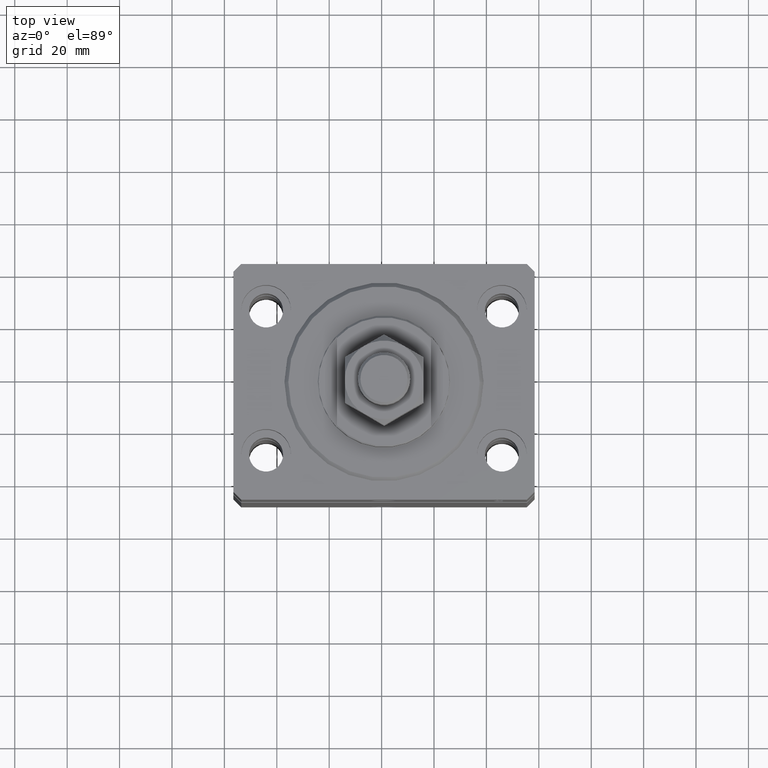
[diagram: clean part render]
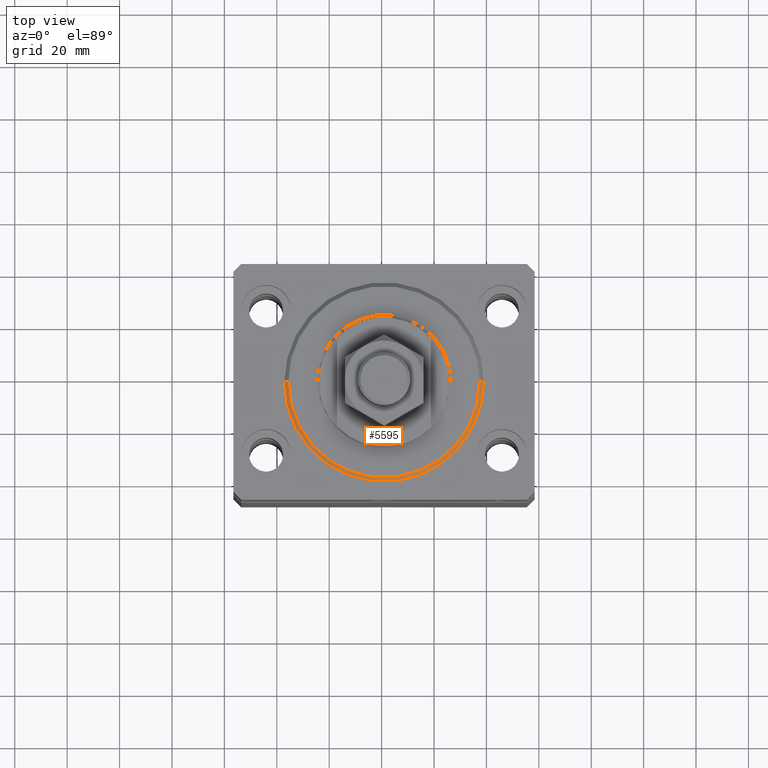
[diagram: same view with one face highlighted and labeled with its STEP entity id]
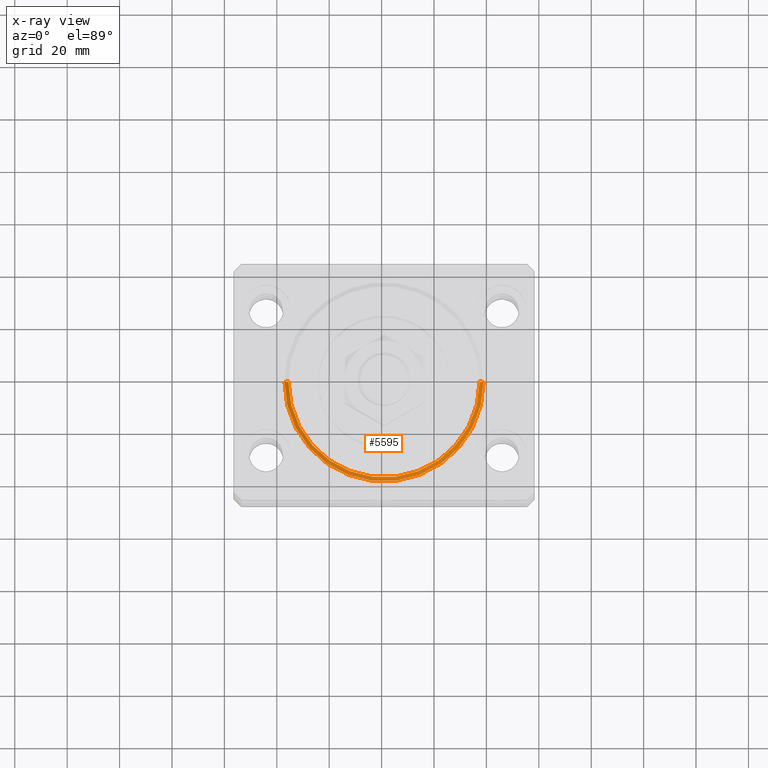
[diagram: x-ray of the same camera — body ghosted, the highlighted face saturated]
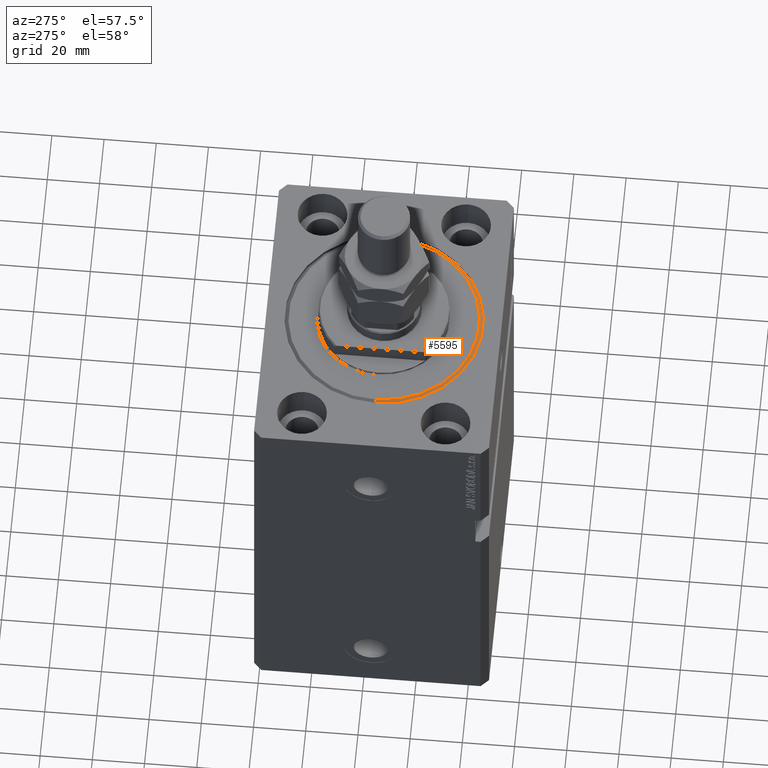
[diagram: same view with one face highlighted and labeled with its STEP entity id]
A machine part, top view. The second image highlights one B-rep face of the part: STEP entity #5595.
The next image is the same camera in x-ray: the body ghosted, the highlighted face saturated — about 0% of this face is hidden behind the body in this view.
A second angle (auxiliary view) of the same face is appended — the face is thin or edge-on in the first view.
In plain terms, the highlighted conical surface has half-angle 45 deg.
Its self-contained STEP definition (entity closure, byte-faithful):
#4158 = AXIS2_PLACEMENT_3D ( 'NONE', #35667, #21028, #46481 ) ;
#5595 = ADVANCED_FACE ( 'NONE', ( #34089 ), #45460, .T. ) ;
#6915 = CARTESIAN_POINT ( 'NONE',  ( 36.50000000000000000, 0.000000000000000000, 0.000000000000000000 ) ) ;
#7001 = EDGE_CURVE ( 'NONE', #44062, #22328, #30322, .T. ) ;
#7285 = CIRCLE ( 'NONE', #42562, 36.50000000000000000 ) ;
#7613 = CARTESIAN_POINT ( 'NONE',  ( 38.00000000000000000, 0.000000000000000000, 1.499999999999987566 ) ) ;
#7847 = LINE ( 'NONE', #7613, #26562 ) ;
#8646 = CARTESIAN_POINT ( 'NONE',  ( 0.000000000000000000, 0.000000000000000000, 1.499999999999987566 ) ) ;
#9009 = ORIENTED_EDGE ( 'NONE', *, *, #11910, .F. ) ;
#11561 = CARTESIAN_POINT ( 'NONE',  ( 0.000000000000000000, 0.000000000000000000, 0.000000000000000000 ) ) ;
#11813 = CARTESIAN_POINT ( 'NONE',  ( -38.00000000000000000, 0.000000000000000000, 1.499999999999987566 ) ) ;
#11910 = EDGE_CURVE ( 'NONE', #22328, #14782, #36393, .T. ) ;
#12090 = CARTESIAN_POINT ( 'NONE',  ( -38.00000000000000000, 4.653657836759941152E-15, 1.499999999999987566 ) ) ;
#12655 = EDGE_CURVE ( 'NONE', #19802, #44062, #7285, .T. ) ;
#14782 = VERTEX_POINT ( 'NONE', #36495 ) ;
#19383 = ORIENTED_EDGE ( 'NONE', *, *, #7001, .F. ) ;
#19802 = VERTEX_POINT ( 'NONE', #6915 ) ;
#19820 = EDGE_CURVE ( 'NONE', #19802, #14782, #7847, .T. ) ;
#21028 = DIRECTION ( 'NONE',  ( -0.000000000000000000, -0.000000000000000000, 1.000000000000000000 ) ) ;
#21039 = EDGE_LOOP ( 'NONE', ( #19383, #39824, #37395, #9009 ) ) ;
#22328 = VERTEX_POINT ( 'NONE', #11813 ) ;
#23066 = DIRECTION ( 'NONE',  ( 1.000000000000000000, 0.000000000000000000, 0.000000000000000000 ) ) ;
#23296 = DIRECTION ( 'NONE',  ( -0.000000000000000000, -0.000000000000000000, 1.000000000000000000 ) ) ;
#26206 = DIRECTION ( 'NONE',  ( -0.000000000000000000, -0.000000000000000000, -1.000000000000000000 ) ) ;
#26562 = VECTOR ( 'NONE', #34009, 1000.000000000000114 ) ;
#30260 = VECTOR ( 'NONE', #34144, 1000.000000000000114 ) ;
#30322 = LINE ( 'NONE', #12090, #30260 ) ;
#34009 = DIRECTION ( 'NONE',  ( 0.7071067811865507924, 0.000000000000000000, 0.7071067811865441310 ) ) ;
#34039 = AXIS2_PLACEMENT_3D ( 'NONE', #8646, #23296, #23066 ) ;
#34089 = FACE_OUTER_BOUND ( 'NONE', #21039, .T. ) ;
#34144 = DIRECTION ( 'NONE',  ( -0.7071067811865507924, 8.659560562354972301E-17, 0.7071067811865441310 ) ) ;
#35667 = CARTESIAN_POINT ( 'NONE',  ( 0.000000000000000000, 0.000000000000000000, 1.499999999999987566 ) ) ;
#36393 = CIRCLE ( 'NONE', #4158, 38.00000000000000000 ) ;
#36495 = CARTESIAN_POINT ( 'NONE',  ( 38.00000000000000000, 4.653657836759941941E-15, 1.499999999999987566 ) ) ;
#37395 = ORIENTED_EDGE ( 'NONE', *, *, #19820, .T. ) ;
#39824 = ORIENTED_EDGE ( 'NONE', *, *, #12655, .F. ) ;
#40854 = DIRECTION ( 'NONE',  ( 1.000000000000000000, 0.000000000000000000, 0.000000000000000000 ) ) ;
#42562 = AXIS2_PLACEMENT_3D ( 'NONE', #11561, #26206, #40854 ) ;
#44062 = VERTEX_POINT ( 'NONE', #46010 ) ;
#45460 = CONICAL_SURFACE ( 'NONE', #34039, 38.00000000000000000, 0.7853981633974529419 ) ;
#46010 = CARTESIAN_POINT ( 'NONE',  ( -36.50000000000000000, 4.561809326823889791E-15, 0.000000000000000000 ) ) ;
#46481 = DIRECTION ( 'NONE',  ( 1.000000000000000000, 0.000000000000000000, 0.000000000000000000 ) ) ;